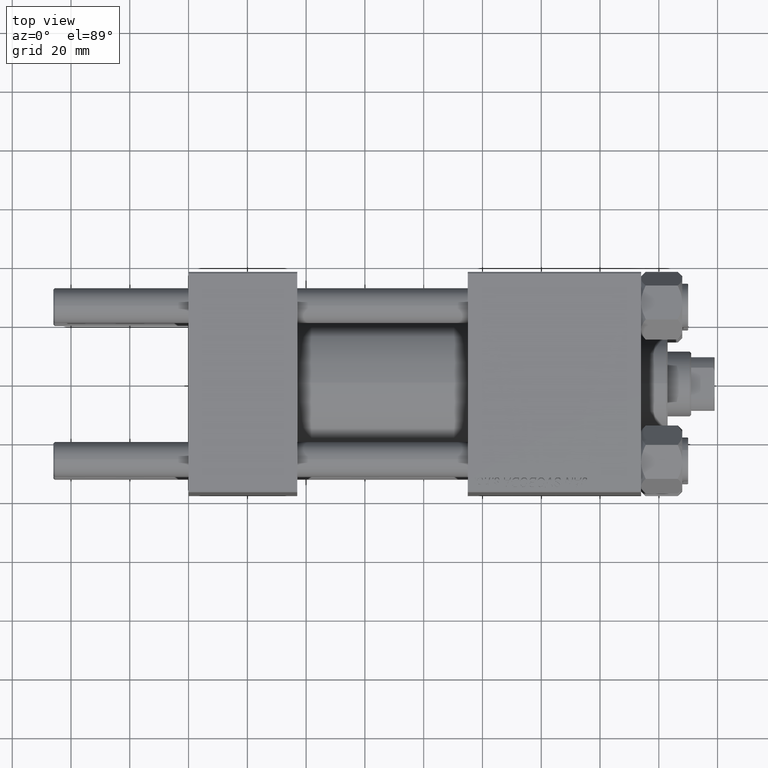
[diagram: clean part render]
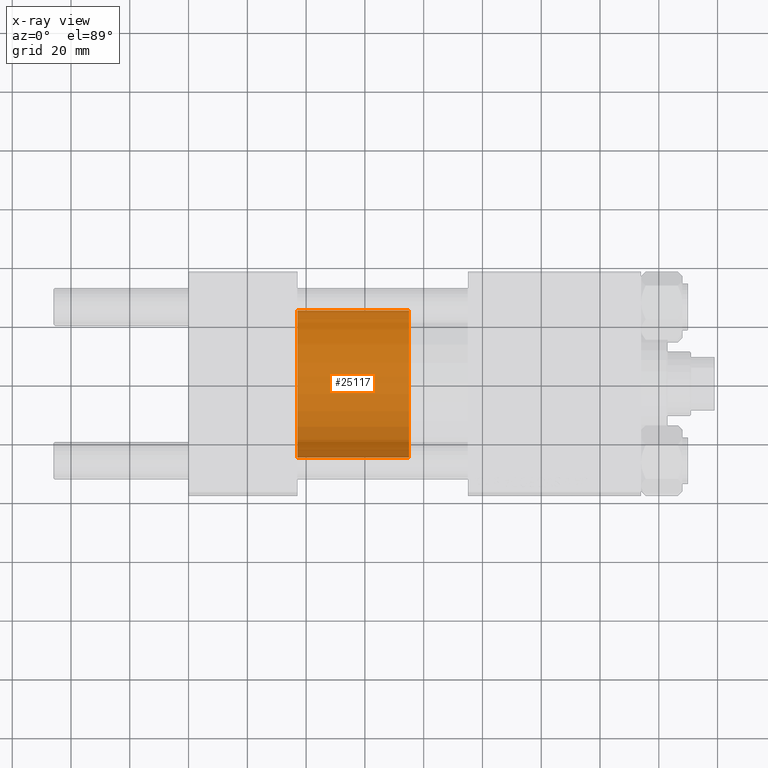
[diagram: x-ray — body ghosted, one internal face saturated and labeled with its STEP entity id]
A machine part, top view, then the same camera in x-ray: the body is ghosted and one INTERNAL B-rep face — a face not visible from any outside direction — is saturated and labeled: STEP entity #25117.
In plain terms, the highlighted cylindrical surface (partial cylindrical patch) has radius 25 mm, axis along (-1, 0, 0).
Its self-contained STEP definition (entity closure, byte-faithful):
#596 = LINE ( 'NONE', #34751, #30614 ) ;
#1474 = LINE ( 'NONE', #9801, #9152 ) ;
#3552 = CIRCLE ( 'NONE', #19746, 25.00000000000000000 ) ;
#3629 = DIRECTION ( 'NONE',  ( 1.000000000000000000, 0.000000000000000000, 0.000000000000000000 ) ) ;
#4128 = CARTESIAN_POINT ( 'NONE',  ( 0.000000000000000000, 0.000000000000000000, 38.00000000000000000 ) ) ;
#5430 = VERTEX_POINT ( 'NONE', #6357 ) ;
#6357 = CARTESIAN_POINT ( 'NONE',  ( -25.00000000000000000, 0.000000000000000000, 38.00000000000000000 ) ) ;
#8715 = DIRECTION ( 'NONE',  ( 0.000000000000000000, 0.000000000000000000, 1.000000000000000000 ) ) ;
#9152 = VECTOR ( 'NONE', #10050, 1000.000000000000000 ) ;
#9801 = CARTESIAN_POINT ( 'NONE',  ( 25.00000000000000000, 3.061616997868383043E-15, 38.00000000000000000 ) ) ;
#10050 = DIRECTION ( 'NONE',  ( -0.000000000000000000, -0.000000000000000000, -1.000000000000000000 ) ) ;
#10708 = CARTESIAN_POINT ( 'NONE',  ( 25.00000000000000000, 3.061616997868383043E-15, 38.00000000000000000 ) ) ;
#18984 = VERTEX_POINT ( 'NONE', #34408 ) ;
#19351 = EDGE_CURVE ( 'NONE', #18984, #23347, #38758, .T. ) ;
#19659 = EDGE_LOOP ( 'NONE', ( #28344, #24800, #49374, #24037 ) ) ;
#19746 = AXIS2_PLACEMENT_3D ( 'NONE', #4128, #31468, #3629 ) ;
#20293 = DIRECTION ( 'NONE',  ( -1.000000000000000000, 0.000000000000000000, 0.000000000000000000 ) ) ;
#20544 = CYLINDRICAL_SURFACE ( 'NONE', #47729, 25.00000000000000000 ) ;
#23347 = VERTEX_POINT ( 'NONE', #26113 ) ;
#24037 = ORIENTED_EDGE ( 'NONE', *, *, #44949, .F. ) ;
#24079 = FACE_OUTER_BOUND ( 'NONE', #19659, .T. ) ;
#24800 = ORIENTED_EDGE ( 'NONE', *, *, #32204, .T. ) ;
#25117 = ADVANCED_FACE ( 'NONE', ( #24079 ), #20544, .T. ) ;
#26113 = CARTESIAN_POINT ( 'NONE',  ( -25.00000000000000000, 0.000000000000000000, 0.000000000000000000 ) ) ;
#26959 = CARTESIAN_POINT ( 'NONE',  ( 0.000000000000000000, 0.000000000000000000, 0.000000000000000000 ) ) ;
#28344 = ORIENTED_EDGE ( 'NONE', *, *, #34783, .F. ) ;
#29011 = VERTEX_POINT ( 'NONE', #10708 ) ;
#30614 = VECTOR ( 'NONE', #46156, 1000.000000000000000 ) ;
#31013 = DIRECTION ( 'NONE',  ( 1.000000000000000000, 0.000000000000000000, 0.000000000000000000 ) ) ;
#31468 = DIRECTION ( 'NONE',  ( 0.000000000000000000, 0.000000000000000000, 1.000000000000000000 ) ) ;
#31935 = DIRECTION ( 'NONE',  ( -0.000000000000000000, -0.000000000000000000, -1.000000000000000000 ) ) ;
#32204 = EDGE_CURVE ( 'NONE', #29011, #18984, #1474, .T. ) ;
#34408 = CARTESIAN_POINT ( 'NONE',  ( 25.00000000000000000, 3.061616997868383043E-15, 0.000000000000000000 ) ) ;
#34728 = AXIS2_PLACEMENT_3D ( 'NONE', #26959, #8715, #31013 ) ;
#34751 = CARTESIAN_POINT ( 'NONE',  ( -25.00000000000000000, 0.000000000000000000, 38.00000000000000000 ) ) ;
#34783 = EDGE_CURVE ( 'NONE', #29011, #5430, #3552, .T. ) ;
#38758 = CIRCLE ( 'NONE', #34728, 25.00000000000000000 ) ;
#39518 = CARTESIAN_POINT ( 'NONE',  ( 0.000000000000000000, 0.000000000000000000, 38.00000000000000000 ) ) ;
#44949 = EDGE_CURVE ( 'NONE', #5430, #23347, #596, .T. ) ;
#46156 = DIRECTION ( 'NONE',  ( -0.000000000000000000, -0.000000000000000000, -1.000000000000000000 ) ) ;
#47729 = AXIS2_PLACEMENT_3D ( 'NONE', #39518, #31935, #20293 ) ;
#49374 = ORIENTED_EDGE ( 'NONE', *, *, #19351, .T. ) ;